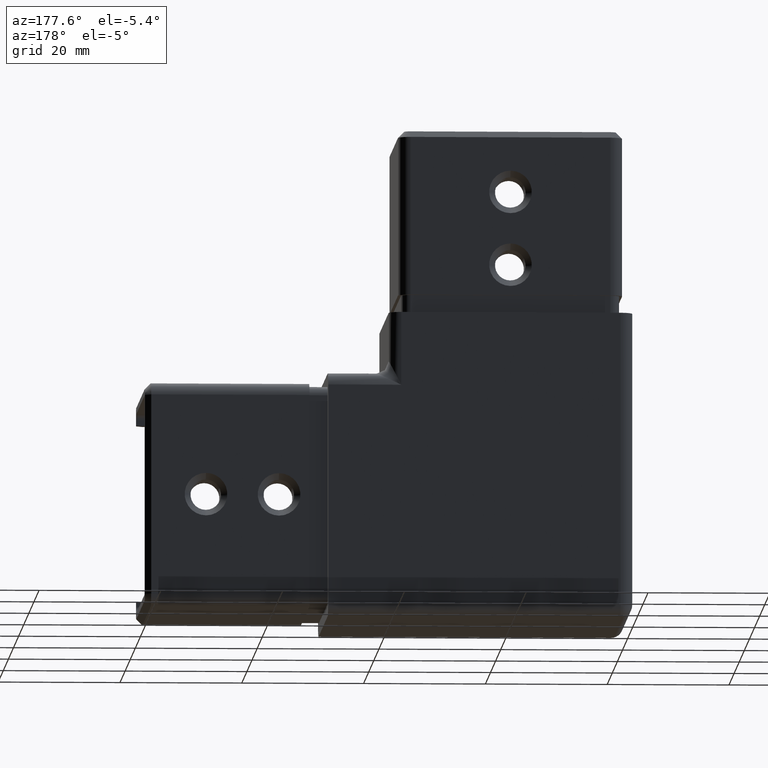
[diagram: clean part render]
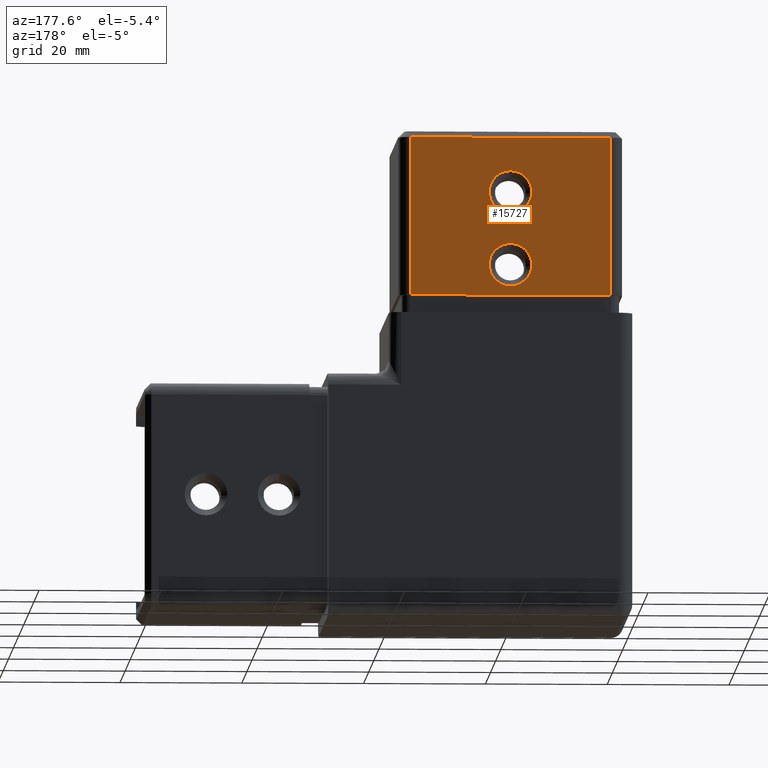
[diagram: same view with one face highlighted and labeled with its STEP entity id]
A machine part, auxiliary view. The second image highlights one B-rep face of the part: STEP entity #15727.
In plain terms, the highlighted planar face has unit normal (-0, -1, 0).
Its self-contained STEP definition (entity closure, byte-faithful):
#219 = VERTEX_POINT ( 'NONE', #10792 ) ;
#501 = CARTESIAN_POINT ( 'NONE',  ( 16.39999999999998437, -1.600000000000011191, 60.00000000000000000 ) ) ;
#516 = DIRECTION ( 'NONE',  ( 1.000000000000000000, -2.478176394252589029E-16, 0.000000000000000000 ) ) ;
#925 = EDGE_LOOP ( 'NONE', ( #5348, #18307 ) ) ;
#1241 = VERTEX_POINT ( 'NONE', #6621 ) ;
#1737 = CARTESIAN_POINT ( 'NONE',  ( 16.39999999999998437, -1.600000000000010081, 33.00000000000000000 ) ) ;
#1740 = LINE ( 'NONE', #1737, #5299 ) ;
#1759 = ORIENTED_EDGE ( 'NONE', *, *, #12343, .T. ) ;
#2448 = LINE ( 'NONE', #16235, #7160 ) ;
#2688 = DIRECTION ( 'NONE',  ( -2.181626322684248753E-16, -1.000000000000000000, 0.000000000000000000 ) ) ;
#2741 = EDGE_LOOP ( 'NONE', ( #15145, #11946, #1759, #13178 ) ) ;
#2976 = EDGE_LOOP ( 'NONE', ( #6882, #11525 ) ) ;
#3363 = CARTESIAN_POINT ( 'NONE',  ( -3.490602116294812007E-16, -1.600000000000006306, 49.99999999999998579 ) ) ;
#3560 = DIRECTION ( 'NONE',  ( -0.000000000000000000, -0.000000000000000000, -1.000000000000000000 ) ) ;
#5299 = VECTOR ( 'NONE', #6231, 1000.000000000000000 ) ;
#5348 = ORIENTED_EDGE ( 'NONE', *, *, #17021, .T. ) ;
#5519 = EDGE_CURVE ( 'NONE', #11485, #219, #8725, .T. ) ;
#5739 = EDGE_CURVE ( 'NONE', #9140, #15613, #11996, .T. ) ;
#5789 = DIRECTION ( 'NONE',  ( 1.000000000000000000, -2.181626322684248753E-16, -0.000000000000000000 ) ) ;
#5798 = DIRECTION ( 'NONE',  ( 1.000000000000000000, -2.181626322684248753E-16, 0.000000000000000000 ) ) ;
#6231 = DIRECTION ( 'NONE',  ( 1.000000000000000000, -2.181626322684248753E-16, 0.000000000000000000 ) ) ;
#6584 = EDGE_CURVE ( 'NONE', #219, #11485, #7061, .T. ) ;
#6621 = CARTESIAN_POINT ( 'NONE',  ( 16.39999999999998437, -1.600000000000005862, 33.00000000000000000 ) ) ;
#6882 = ORIENTED_EDGE ( 'NONE', *, *, #6584, .T. ) ;
#7061 = CIRCLE ( 'NONE', #14290, 3.499999999999989342 ) ;
#7160 = VECTOR ( 'NONE', #5789, 1000.000000000000000 ) ;
#7197 = AXIS2_PLACEMENT_3D ( 'NONE', #14798, #10203, #5798 ) ;
#7938 = LINE ( 'NONE', #17250, #18756 ) ;
#8127 = FACE_BOUND ( 'NONE', #925, .T. ) ;
#8300 = CARTESIAN_POINT ( 'NONE',  ( 7.956616807209110289E-17, -1.600000000000006306, 34.50000000000000000 ) ) ;
#8698 = CARTESIAN_POINT ( 'NONE',  ( -3.490602116294812007E-16, -1.600000000000006306, 49.99999999999998579 ) ) ;
#8725 = CIRCLE ( 'NONE', #15508, 3.499999999999989342 ) ;
#9140 = VERTEX_POINT ( 'NONE', #8300 ) ;
#9984 = AXIS2_PLACEMENT_3D ( 'NONE', #18707, #11067, #18771 ) ;
#10203 = DIRECTION ( 'NONE',  ( -2.181626322684248753E-16, -1.000000000000000000, 0.000000000000000000 ) ) ;
#10211 = FACE_OUTER_BOUND ( 'NONE', #2741, .T. ) ;
#10334 = VERTEX_POINT ( 'NONE', #14108 ) ;
#10792 = CARTESIAN_POINT ( 'NONE',  ( -3.490602116294812007E-16, -1.600000000000006306, 53.49999999999997868 ) ) ;
#11067 = DIRECTION ( 'NONE',  ( -2.181626322684248753E-16, -1.000000000000000000, 0.000000000000000000 ) ) ;
#11106 = DIRECTION ( 'NONE',  ( -2.181626322684248753E-16, -1.000000000000000000, 0.000000000000000000 ) ) ;
#11485 = VERTEX_POINT ( 'NONE', #16995 ) ;
#11525 = ORIENTED_EDGE ( 'NONE', *, *, #5519, .T. ) ;
#11946 = ORIENTED_EDGE ( 'NONE', *, *, #19492, .T. ) ;
#11996 = CIRCLE ( 'NONE', #16525, 3.499999999999989342 ) ;
#12103 = FACE_BOUND ( 'NONE', #2976, .T. ) ;
#12343 = EDGE_CURVE ( 'NONE', #19287, #1241, #19221, .T. ) ;
#12973 = EDGE_CURVE ( 'NONE', #10334, #17356, #7938, .T. ) ;
#13178 = ORIENTED_EDGE ( 'NONE', *, *, #16210, .F. ) ;
#13215 = DIRECTION ( 'NONE',  ( 1.000000000000000000, -2.478176394252589029E-16, 0.000000000000000000 ) ) ;
#13388 = DIRECTION ( 'NONE',  ( -2.181626322684248753E-16, -1.000000000000000000, 0.000000000000000000 ) ) ;
#14108 = CARTESIAN_POINT ( 'NONE',  ( -16.39999999999998437, -1.600000000000002975, 58.99999999999999289 ) ) ;
#14290 = AXIS2_PLACEMENT_3D ( 'NONE', #8698, #2688, #13215 ) ;
#14671 = PLANE ( 'NONE',  #7197 ) ;
#14798 = CARTESIAN_POINT ( 'NONE',  ( 16.39999999999998437, -1.600000000000010081, 60.00000000000000000 ) ) ;
#15035 = DIRECTION ( 'NONE',  ( 1.000000000000000000, -2.478176394252589029E-16, 0.000000000000000000 ) ) ;
#15145 = ORIENTED_EDGE ( 'NONE', *, *, #12973, .F. ) ;
#15212 = VECTOR ( 'NONE', #3560, 1000.000000000000000 ) ;
#15508 = AXIS2_PLACEMENT_3D ( 'NONE', #3363, #11106, #516 ) ;
#15613 = VERTEX_POINT ( 'NONE', #18952 ) ;
#15727 = ADVANCED_FACE ( 'NONE', ( #12103, #8127, #10211 ), #14671, .F. ) ;
#15980 = CARTESIAN_POINT ( 'NONE',  ( 16.39999999999998437, -1.600000000000011191, 58.99999999999999289 ) ) ;
#16210 = EDGE_CURVE ( 'NONE', #17356, #1241, #1740, .T. ) ;
#16235 = CARTESIAN_POINT ( 'NONE',  ( 16.39999999999998437, -1.600000000000010081, 58.99999999999999289 ) ) ;
#16480 = CARTESIAN_POINT ( 'NONE',  ( -3.490602116294812007E-16, -1.600000000000006306, 37.99999999999999289 ) ) ;
#16525 = AXIS2_PLACEMENT_3D ( 'NONE', #16480, #13388, #15035 ) ;
#16633 = CARTESIAN_POINT ( 'NONE',  ( -16.39999999999998437, -1.600000000000003419, 33.00000000000000000 ) ) ;
#16995 = CARTESIAN_POINT ( 'NONE',  ( 7.956616807209110289E-17, -1.600000000000006306, 46.50000000000000000 ) ) ;
#17021 = EDGE_CURVE ( 'NONE', #15613, #9140, #18671, .T. ) ;
#17250 = CARTESIAN_POINT ( 'NONE',  ( -16.39999999999998437, -1.600000000000002975, 60.00000000000000000 ) ) ;
#17356 = VERTEX_POINT ( 'NONE', #16633 ) ;
#18307 = ORIENTED_EDGE ( 'NONE', *, *, #5739, .T. ) ;
#18671 = CIRCLE ( 'NONE', #9984, 3.499999999999989342 ) ;
#18707 = CARTESIAN_POINT ( 'NONE',  ( -3.490602116294812007E-16, -1.600000000000006306, 37.99999999999999289 ) ) ;
#18756 = VECTOR ( 'NONE', #18896, 1000.000000000000000 ) ;
#18771 = DIRECTION ( 'NONE',  ( 1.000000000000000000, -2.478176394252589029E-16, 0.000000000000000000 ) ) ;
#18896 = DIRECTION ( 'NONE',  ( -0.000000000000000000, -0.000000000000000000, -1.000000000000000000 ) ) ;
#18952 = CARTESIAN_POINT ( 'NONE',  ( -3.490602116294812007E-16, -1.600000000000006306, 41.49999999999997868 ) ) ;
#19221 = LINE ( 'NONE', #501, #15212 ) ;
#19287 = VERTEX_POINT ( 'NONE', #15980 ) ;
#19492 = EDGE_CURVE ( 'NONE', #10334, #19287, #2448, .T. ) ;